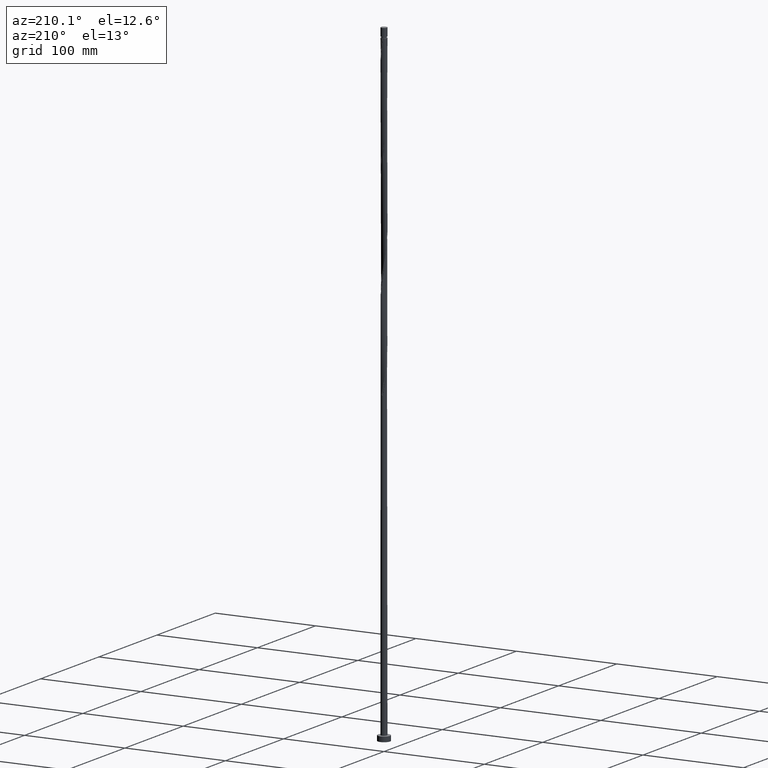
[diagram: clean part render]
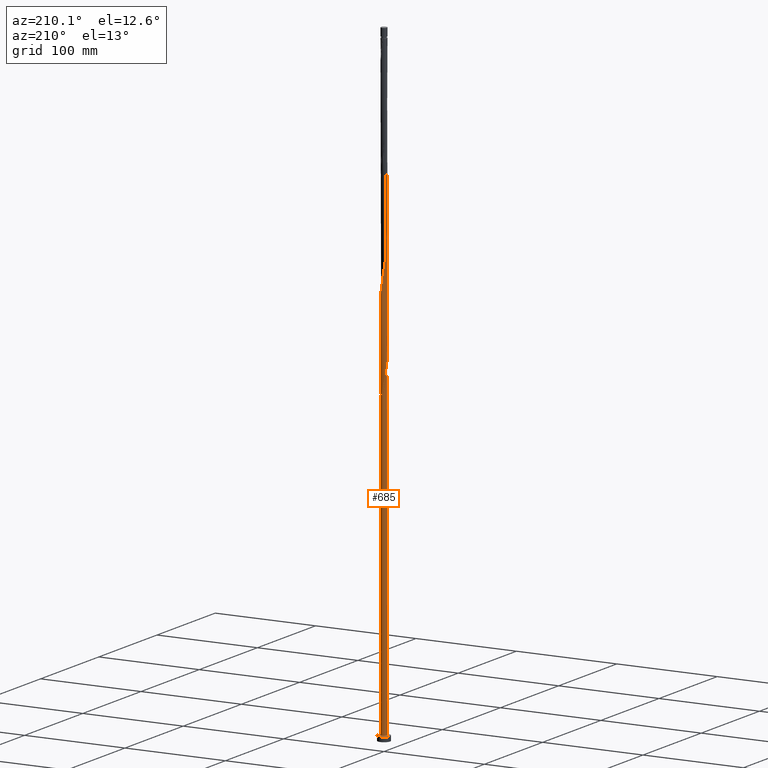
[diagram: same view with one face highlighted and labeled with its STEP entity id]
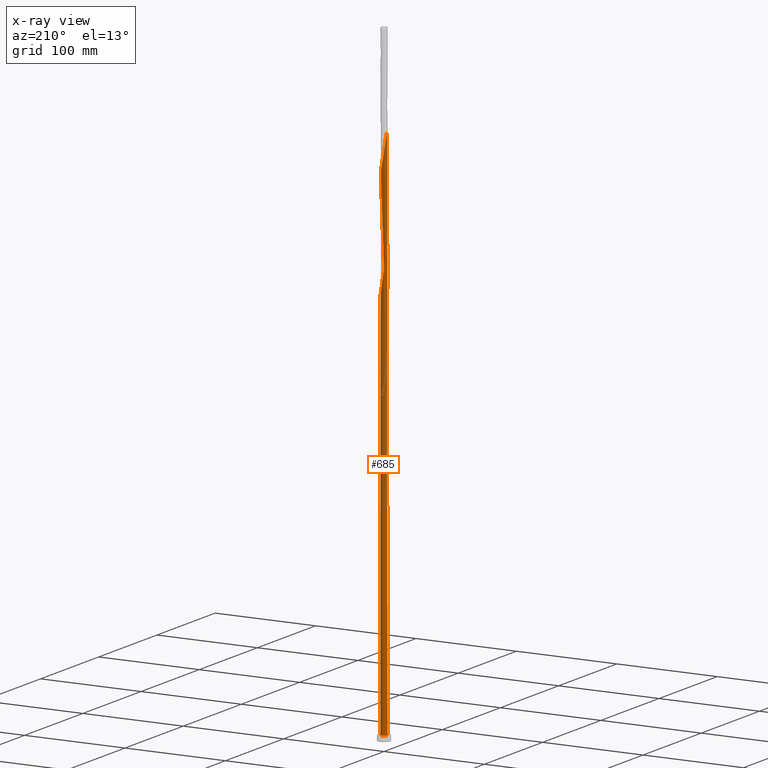
[diagram: x-ray of the same camera — body ghosted, the highlighted face saturated]
A machine part, auxiliary view. The second image highlights one B-rep face of the part: STEP entity #685.
The next image is the same camera in x-ray: the body ghosted, the highlighted face saturated — about 0% of this face is hidden behind the body in this view.
In plain terms, the highlighted cylindrical surface (bore or boss wall) has radius 3 mm, axis along (-0, -0, -1).
Its self-contained STEP definition (entity closure, byte-faithful):
#3 = CARTESIAN_POINT ( 'NONE',  ( 2.536630621716258638, 1.625664187643079517, 495.7326650372680774 ) ) ;
#10 = DIRECTION ( 'NONE',  ( -1.000000000000000000, 0.000000000000000000, 0.000000000000000000 ) ) ;
#17 = CARTESIAN_POINT ( 'NONE',  ( -1.618729390815118574, 2.525809802679398697, 311.9826650372680774 ) ) ;
#32 = CARTESIAN_POINT ( 'NONE',  ( -2.257787423510102087, 1.994912256780598359, 316.6150179784446550 ) ) ;
#48 = AXIS2_PLACEMENT_3D ( 'NONE', #668, #625, #181 ) ;
#51 = CARTESIAN_POINT ( 'NONE',  ( 2.705938983621515970, -1.295335561511913092, 478.7473709196210052 ) ) ;
#60 = CARTESIAN_POINT ( 'NONE',  ( -3.000000000000000444, 0.1620599510377900287, 334.5004839917141908 ) ) ;
#64 = CARTESIAN_POINT ( 'NONE',  ( 2.991142133201746489, -0.2303665318255492811, 484.9238415078563094 ) ) ;
#72 = CARTESIAN_POINT ( 'NONE',  ( 0.04660394873883068334, 2.999637990151803102, 308.8944297431503969 ) ) ;
#73 = CARTESIAN_POINT ( 'NONE',  ( -2.952595250812086292, -0.5995500370242291543, 437.0561944490327733 ) ) ;
#105 = CARTESIAN_POINT ( 'NONE',  ( 2.982541993412459735, 0.3231768208446592627, 383.0120768019739330 ) ) ;
#112 = CARTESIAN_POINT ( 'NONE',  ( -3.000000000000004885, 3.585298424180292749E-16, 538.7079856743387154 ) ) ;
#118 = CARTESIAN_POINT ( 'NONE',  ( 1.040137337541179319, 2.813914412176173219, 401.5414885666797886 ) ) ;
#129 = CARTESIAN_POINT ( 'NONE',  ( -1.040137337541177986, -2.813914412176173663, 349.0414885666797886 ) ) ;
#140 = CARTESIAN_POINT ( 'NONE',  ( -0.5053716063653430624, -2.957126906218219720, 352.1297238607974123 ) ) ;
#151 = CARTESIAN_POINT ( 'NONE',  ( 2.792154675592615654, 1.131879511953521877, 387.6444297431504538 ) ) ;
#163 = CARTESIAN_POINT ( 'NONE',  ( 3.012488736012832735, 0.04680360466508966255, 486.4679591549152065 ) ) ;
#173 = CARTESIAN_POINT ( 'NONE',  ( 0.3245613423124111829, -2.995319498332392971, 461.7620768019738762 ) ) ;
#181 = DIRECTION ( 'NONE',  ( -1.000000000000000000, 0.000000000000000000, 0.000000000000000000 ) ) ;
#186 = DIRECTION ( 'NONE',  ( -0.000000000000000000, -0.000000000000000000, -1.000000000000000000 ) ) ;
#188 = FACE_OUTER_BOUND ( 'NONE', #2037, .T. ) ;
#194 = CARTESIAN_POINT ( 'NONE',  ( 3.000000000000000444, 0.000000000000000000, 5.000000000000000000 ) ) ;
#211 = CARTESIAN_POINT ( 'NONE',  ( -3.000000000000000000, -2.464892666623968010E-15, 335.4044032237268880 ) ) ;
#213 = CARTESIAN_POINT ( 'NONE',  ( 1.127051113500264545, -2.780243835989542056, 466.3944297431503401 ) ) ;
#222 = CARTESIAN_POINT ( 'NONE',  ( -2.365677638043349074, 1.844876503417407720, 324.3356062137385720 ) ) ;
#226 = CARTESIAN_POINT ( 'NONE',  ( 2.585908467384855580, -1.546077734242734536, 477.2032532725622218 ) ) ;
#234 = CARTESIAN_POINT ( 'NONE',  ( 2.792154675592615654, 1.131879511953521877, 492.6444297431503969 ) ) ;
#240 = ORIENTED_EDGE ( 'NONE', *, *, #2021, .F. ) ;
#268 = CARTESIAN_POINT ( 'NONE',  ( -0.2313534448347506212, -3.003956481971224335, 353.6738415078563662 ) ) ;
#276 = CARTESIAN_POINT ( 'NONE',  ( 1.852780136845253445, -2.375812435047330418, 366.0267826843269177 ) ) ;
#281 = CARTESIAN_POINT ( 'NONE',  ( -2.705938983621516858, 1.295335561511912648, 531.2473709196209484 ) ) ;
#284 = CARTESIAN_POINT ( 'NONE',  ( -2.664392648654435369, -1.378771849798300586, 336.6885473902091235 ) ) ;
#294 = CARTESIAN_POINT ( 'NONE',  ( 2.055283780177677766, -2.185362345913963722, 367.5709003313857011 ) ) ;
#303 = CARTESIAN_POINT ( 'NONE',  ( 1.778079971202144449, 2.432223381604499579, 396.9091356255033816 ) ) ;
#306 = VERTEX_POINT ( 'NONE', #701 ) ;
#314 = CARTESIAN_POINT ( 'NONE',  ( 2.897882515124419189, -0.7760650285486373479, 481.8356062137386857 ) ) ;
#316 = ORIENTED_EDGE ( 'NONE', *, *, #956, .T. ) ;
#327 = CARTESIAN_POINT ( 'NONE',  ( -2.792154675592615654, -1.131879511953520989, 440.1444297431504538 ) ) ;
#341 = CARTESIAN_POINT ( 'NONE',  ( -0.04660394873883114825, 2.999637990151807543, 512.7179591549150928 ) ) ;
#355 = AXIS2_PLACEMENT_3D ( 'NONE', #852, #505, #10 ) ;
#360 = EDGE_CURVE ( 'NONE', #1279, #1666, #471, .T. ) ;
#376 = CARTESIAN_POINT ( 'NONE',  ( 1.300884907186420802, 2.717531493887130445, 504.9973709196210621 ) ) ;
#383 = CARTESIAN_POINT ( 'NONE',  ( -1.539482439194282959, -2.574877437745813680, 450.9532532725622218 ) ) ;
#413 = CARTESIAN_POINT ( 'NONE',  ( -2.969795530390661131, 0.5075366683161857129, 535.8797238607975260 ) ) ;
#418 = CARTESIAN_POINT ( 'NONE',  ( 1.618729390815119018, -2.525809802679398697, 364.4826650372681343 ) ) ;
#429 = CARTESIAN_POINT ( 'NONE',  ( -2.982541993412459735, -0.3231768208446587076, 330.5120768019739899 ) ) ;
#437 = CARTESIAN_POINT ( 'NONE',  ( -1.986402312786298197, -2.248156100398118973, 342.8650179784444845 ) ) ;
#447 = CARTESIAN_POINT ( 'NONE',  ( -2.705938983621516858, 1.295335561511912648, 321.2473709196210052 ) ) ;
#450 = CARTESIAN_POINT ( 'NONE',  ( 2.365677638043353515, 1.844876503417411051, 392.2767826843268608 ) ) ;
#460 = CARTESIAN_POINT ( 'NONE',  ( 0.7793897678959356146, 2.910297330465215992, 403.0856062137386289 ) ) ;
#471 =( BOUNDED_CURVE ( )  B_SPLINE_CURVE ( 2, ( #211, #60, #1956, #536, #1799, #1005, #1022, #1647, #222, #713, #1340, #1670, #1801, #1967, #1342, #704, #884, #1649, #72, #1361, #725 ),
 .UNSPECIFIED., .F., .T. ) 
 B_SPLINE_CURVE_WITH_KNOTS ( ( 3, 2, 2, 2, 2, 2, 2, 2, 2, 2, 3 ),
 ( 0.9295293573162902723, 0.9338235294117647189, 0.9411764705882352811, 0.9485294117647058432, 0.9558823529411765163, 0.9632352941176470784, 0.9705882352941176405, 0.9779411764705882026, 0.9852941176470588758, 0.9926470588235294379, 1.000000000000000000 ),
 .UNSPECIFIED. ) 
 CURVE ( )  GEOMETRIC_REPRESENTATION_ITEM ( )  RATIONAL_B_SPLINE_CURVE ( ( 0.9072066346053563324, 0.9068261157891231994, 0.9090909090909947698, 0.9052128875410255793, 0.9090909090909947698, 0.9052128875410255793, 0.9090909090909947698, 0.9052128875410255793, 0.9090909090909947698, 0.9052128875410255793, 0.9090909090909947698, 0.9052128875410255793, 0.9090909090909947698, 0.9052128875410255793, 0.9090909090909947698, 0.9052128875410255793, 0.9090909090909947698, 0.9052128875410255793, 0.9090909090909947698, 0.9052128875410255793, 0.9090909090909947698 ) ) 
 REPRESENTATION_ITEM ( '' )  );
#474 = CARTESIAN_POINT ( 'NONE',  ( -2.969795530390661131, 0.5075366683161857129, 430.8797238607974691 ) ) ;
#487 = CARTESIAN_POINT ( 'NONE',  ( -2.421847945447479056, 1.770494995511666669, 423.1591356255033247 ) ) ;
#499 = CARTESIAN_POINT ( 'NONE',  ( -0.3245613423124109054, 2.995319498332392971, 514.2620768019738762 ) ) ;
#505 = DIRECTION ( 'NONE',  ( -0.000000000000000000, -0.000000000000000000, -1.000000000000000000 ) ) ;
#511 = CARTESIAN_POINT ( 'NONE',  ( -3.000000000000000444, 0.000000000000000000, 630.0000000000000000 ) ) ;
#536 = CARTESIAN_POINT ( 'NONE',  ( -2.952595250812082739, 0.5995500370242290433, 332.0561944490327164 ) ) ;
#538 = CARTESIAN_POINT ( 'NONE',  ( 1.986402312786298197, 2.248156100398118529, 500.3650179784444845 ) ) ;
#546 = CARTESIAN_POINT ( 'NONE',  ( -2.194724654370450168, -2.064088819191741031, 446.3209003313856442 ) ) ;
#552 = ORIENTED_EDGE ( 'NONE', *, *, #1448, .F. ) ;
#565 = CARTESIAN_POINT ( 'NONE',  ( -2.421847945447479056, 1.770494995511666669, 528.1591356255032679 ) ) ;
#592 = CARTESIAN_POINT ( 'NONE',  ( -2.055283780177677766, 2.185362345913964166, 420.0709003313857011 ) ) ;
#601 = CARTESIAN_POINT ( 'NONE',  ( -2.421847945447479056, 1.770494995511666669, 318.1591356255033816 ) ) ;
#603 = CARTESIAN_POINT ( 'NONE',  ( 0.5053716063653433954, 2.957126906218219720, 404.6297238607974691 ) ) ;
#613 = CARTESIAN_POINT ( 'NONE',  ( -3.000000000000005329, 0.1153535636630458883, 328.0645799222789947 ) ) ;
#616 = CARTESIAN_POINT ( 'NONE',  ( -2.194724654370450168, -2.064088819191741031, 341.3209003313857011 ) ) ;
#625 = DIRECTION ( 'NONE',  ( 0.000000000000000000, -0.000000000000000000, -1.000000000000000000 ) ) ;
#628 = CARTESIAN_POINT ( 'NONE',  ( 2.194724654370450168, 2.064088819191740587, 393.8209003313857011 ) ) ;
#638 = CARTESIAN_POINT ( 'NONE',  ( -0.7793897678959365027, -2.910297330465215548, 350.5856062137387994 ) ) ;
#649 = CARTESIAN_POINT ( 'NONE',  ( 2.421847945447479056, -1.770494995511666669, 475.6591356255032679 ) ) ;
#660 = CARTESIAN_POINT ( 'NONE',  ( 1.040137337541179319, 2.813914412176173219, 506.5414885666797886 ) ) ;
#668 = CARTESIAN_POINT ( 'NONE',  ( 0.000000000000000000, 0.000000000000000000, 305.8061944490327733 ) ) ;
#674 = CARTESIAN_POINT ( 'NONE',  ( -3.000000000000000444, 0.000000000000000000, 630.0000000000000000 ) ) ;
#676 = CARTESIAN_POINT ( 'NONE',  ( -0.5969924622639778411, 2.940000000000004388, 305.8061944490327164 ) ) ;
#685 = ADVANCED_FACE ( 'NONE', ( #188 ), #1284, .T. ) ;
#696 = VECTOR ( 'NONE', #186, 1000.000000000000000 ) ;
#701 = CARTESIAN_POINT ( 'NONE',  ( -3.000000000000000444, 0.000000000000000000, 5.000000000000000000 ) ) ;
#704 = CARTESIAN_POINT ( 'NONE',  ( -0.7793897678959346154, 2.910297330465211996, 313.5267826843268608 ) ) ;
#705 = CARTESIAN_POINT ( 'NONE',  ( -0.2313534448347506212, -3.003956481971224335, 458.6738415078563662 ) ) ;
#713 = CARTESIAN_POINT ( 'NONE',  ( -2.194724654370445727, 2.064088819191737478, 322.7914885666799023 ) ) ;
#716 = CARTESIAN_POINT ( 'NONE',  ( -1.040137337541177986, -2.813914412176173663, 454.0414885666797886 ) ) ;
#725 = CARTESIAN_POINT ( 'NONE',  ( 0.5969924622639788403, 2.939999999999999059, 305.8061944490327164 ) ) ;
#732 = VERTEX_POINT ( 'NONE', #676 ) ;
#737 = CARTESIAN_POINT ( 'NONE',  ( -2.991142133201746489, 0.2303665318255482819, 537.4238415078565367 ) ) ;
#759 = CARTESIAN_POINT ( 'NONE',  ( 2.536630621716258638, 1.625664187643079517, 390.7326650372681343 ) ) ;
#768 = CARTESIAN_POINT ( 'NONE',  ( 1.384678644784983703, -2.675807170311466976, 362.9385473902092372 ) ) ;
#778 = CARTESIAN_POINT ( 'NONE',  ( 3.012488736012832735, 0.04680360466508966255, 381.4679591549152065 ) ) ;
#787 = CARTESIAN_POINT ( 'NONE',  ( 1.300884907186420802, 2.717531493887130445, 399.9973709196210621 ) ) ;
#799 = CARTESIAN_POINT ( 'NONE',  ( -1.618729390815118574, 2.525809802679398697, 416.9826650372681343 ) ) ;
#811 = CARTESIAN_POINT ( 'NONE',  ( 1.778079971202144449, 2.432223381604499579, 501.9091356255034384 ) ) ;
#824 = CARTESIAN_POINT ( 'NONE',  ( -2.897882515124418745, 0.7760650285486383471, 429.3356062137386857 ) ) ;
#833 = AXIS2_PLACEMENT_3D ( 'NONE', #1169, #1306, #836 ) ;
#836 = DIRECTION ( 'NONE',  ( 1.000000000000000000, 0.000000000000000000, 0.000000000000000000 ) ) ;
#852 = CARTESIAN_POINT ( 'NONE',  ( 0.000000000000000000, 0.000000000000000000, 630.0000000000000000 ) ) ;
#862 = CARTESIAN_POINT ( 'NONE',  ( -2.365677638043353515, -1.844876503417409941, 444.7767826843268040 ) ) ;
#868 = CIRCLE ( 'NONE', #1322, 3.000000000000000444 ) ;
#875 = CARTESIAN_POINT ( 'NONE',  ( 2.952595250812086292, 0.5995500370242289323, 489.5561944490328870 ) ) ;
#884 = CARTESIAN_POINT ( 'NONE',  ( -0.5053716063653417301, 2.957126906218214835, 311.9826650372680774 ) ) ;
#885 = CARTESIAN_POINT ( 'NONE',  ( 0.8694235822155469418, -2.884680501667616248, 464.8503120960916704 ) ) ;
#894 = CARTESIAN_POINT ( 'NONE',  ( -2.585908467384855580, 1.546077734242734980, 529.7032532725622787 ) ) ;
#916 = CARTESIAN_POINT ( 'NONE',  ( 2.872374963202350973, 0.8657147744888740171, 386.1003120960915567 ) ) ;
#924 = CARTESIAN_POINT ( 'NONE',  ( 2.825969499858178136, -1.044593388781091869, 375.2914885666799023 ) ) ;
#930 = VECTOR ( 'NONE', #1440, 1000.000000000000000 ) ;
#936 = CARTESIAN_POINT ( 'NONE',  ( 2.897882515124419189, -0.7760650285486373479, 376.8356062137387426 ) ) ;
#956 = EDGE_CURVE ( 'NONE', #2056, #306, #868, .T. ) ;
#957 = CARTESIAN_POINT ( 'NONE',  ( -0.3245613423124109054, 2.995319498332392971, 409.2620768019739330 ) ) ;
#963 = CIRCLE ( 'NONE', #48, 3.000000000000000444 ) ;
#967 = CARTESIAN_POINT ( 'NONE',  ( 1.852780136845253445, -2.375812435047330418, 471.0267826843269177 ) ) ;
#977 = CARTESIAN_POINT ( 'NONE',  ( -0.7793897678959365027, -2.910297330465215548, 455.5856062137387426 ) ) ;
#987 = CARTESIAN_POINT ( 'NONE',  ( 1.618729390815119018, -2.525809802679398697, 469.4826650372680206 ) ) ;
#998 = ORIENTED_EDGE ( 'NONE', *, *, #1201, .T. ) ;
#1005 = CARTESIAN_POINT ( 'NONE',  ( -2.792154675592610769, 1.131879511953520323, 328.9679591549152065 ) ) ;
#1019 = DIRECTION ( 'NONE',  ( 0.000000000000000000, 0.000000000000000000, 1.000000000000000000 ) ) ;
#1022 = CARTESIAN_POINT ( 'NONE',  ( -2.664392648654431817, 1.378771849798299032, 327.4238415078563094 ) ) ;
#1024 = CARTESIAN_POINT ( 'NONE',  ( -1.778079971202145115, -2.432223381604499135, 449.4091356255033816 ) ) ;
#1034 = CARTESIAN_POINT ( 'NONE',  ( 2.825969499858178136, -1.044593388781091869, 480.2914885666797318 ) ) ;
#1043 = CARTESIAN_POINT ( 'NONE',  ( -3.000000000000003997, 0.1153535636630599881, 538.0645799222789947 ) ) ;
#1069 = CARTESIAN_POINT ( 'NONE',  ( -3.000000000000004885, -0.1620599510377954411, 329.6119049063514694 ) ) ;
#1080 = CARTESIAN_POINT ( 'NONE',  ( 2.257787423510101643, -1.994912256780598581, 369.1150179784445413 ) ) ;
#1085 = CARTESIAN_POINT ( 'NONE',  ( -2.257787423510102087, 1.994912256780598359, 526.6150179784447118 ) ) ;
#1089 = CARTESIAN_POINT ( 'NONE',  ( 1.127051113500264545, -2.780243835989542056, 361.3944297431503401 ) ) ;
#1098 = CARTESIAN_POINT ( 'NONE',  ( -1.384678644784983703, 2.675807170311466976, 415.4385473902093509 ) ) ;
#1106 =( BOUNDED_CURVE ( )  B_SPLINE_CURVE ( 2, ( #1405, #1069, #429, #1704, #1864, #1884, #284, #1107, #1393, #616, #437, #1695, #1846, #2045, #129, #638, #140, #268, #1713, #1723, #1419, #1563, #1089, #768, #418, #276, #294, #1080, #2025, #1542, #1574, #924, #936, #1238, #1553, #778, #105, #1261, #916, #151, #2035, #759, #450, #628, #1731, #303, #1384, #787, #118, #460, #603, #1231, #1249, #957, #1583, #1872, #2015, #1098, #799, #1430, #592, #2054, #487, #1895, #1612, #1493, #824, #474, #1118, #1968, #1752, #73, #1132, #327, #1741, #1909, #862, #546, #1442, #1024, #383, #1593, #716, #977, #1601, #705, #1343, #173, #1181, #885, #213, #1813, #987, #967, #1454, #1501, #649, #226, #51, #1034, #314, #1802, #64, #163, #1333, #875, #1661, #234, #1293, #3, #1959, #1280, #538, #811, #1510, #376, #660, #2063, #1271, #1921, #341, #499, #1141, #1763, #1173, #1650, #1193, #1689, #1990, #1085, #565, #894, #281, #1978, #1528, #413, #737, #1043, #112 ),
 .UNSPECIFIED., .F., .T. ) 
 B_SPLINE_CURVE_WITH_KNOTS ( ( 3, 2, 2, 2, 2, 2, 2, 2, 2, 2, 2, 2, 2, 2, 2, 2, 2, 2, 2, 2, 2, 2, 2, 2, 2, 2, 2, 2, 2, 2, 2, 2, 2, 2, 2, 2, 2, 2, 2, 2, 2, 2, 2, 2, 2, 2, 2, 2, 2, 2, 2, 2, 2, 2, 2, 2, 2, 2, 2, 2, 2, 2, 2, 2, 2, 2, 2, 2, 2, 3 ),
 ( 0.05452935731629042493, 0.05882352941176471894, 0.06617647058823528106, 0.07352941176470584317, 0.08088235294117651630, 0.08823529411764707842, 0.09558823529411764053, 0.1029411764705882026, 0.1102941176470588758, 0.1176470588235294379, 0.1250000000000000000, 0.1323529411764705621, 0.1397058823529411242, 0.1470588235294117974, 0.1544117647058823595, 0.1617647058823529216, 0.1691176470588234837, 0.1764705882352941568, 0.1838235294117647189, 0.1911764705882352811, 0.1985294117647058432, 0.2058823529411765163, 0.2132352941176470784, 0.2205882352941176405, 0.2279411764705882026, 0.2352941176470588758, 0.2426470588235294379, 0.2500000000000000000, 0.2573529411764705621, 0.2647058823529411242, 0.2720588235294117974, 0.2794117647058823595, 0.2867647058823529216, 0.2941176470588234837, 0.3014705882352941568, 0.3088235294117647189, 0.3161764705882352811, 0.3235294117647058432, 0.3308823529411765163, 0.3382352941176470784, 0.3455882352941176405, 0.3529411764705882026, 0.3602941176470588758, 0.3676470588235294379, 0.3750000000000000000, 0.3823529411764705621, 0.3897058823529411242, 0.3970588235294117974, 0.4044117647058823595, 0.4117647058823529216, 0.4191176470588234837, 0.4264705882352941568, 0.4338235294117647189, 0.4411764705882352811, 0.4485294117647058432, 0.4558823529411765163, 0.4632352941176470784, 0.4705882352941176405, 0.4779411764705882026, 0.4852941176470588758, 0.4926470588235294379, 0.5000000000000000000, 0.5073529411764705621, 0.5147058823529411242, 0.5220588235294116863, 0.5294117647058823595, 0.5367647058823529216, 0.5441176470588235947, 0.5514705882352941568, 0.5545293573162900502 ),
 .UNSPECIFIED. ) 
 CURVE ( )  GEOMETRIC_REPRESENTATION_ITEM ( )  RATIONAL_B_SPLINE_CURVE ( ( 0.9072066346053625496, 0.9068261157891295277, 0.9090909090910008761, 0.9052128875410317965, 0.9090909090910008761, 0.9052128875410317965, 0.9090909090910008761, 0.9052128875410317965, 0.9090909090910008761, 0.9052128875410317965, 0.9090909090910008761, 0.9052128875410317965, 0.9090909090910008761, 0.9052128875410317965, 0.9090909090910008761, 0.9052128875410317965, 0.9090909090910008761, 0.9052128875410317965, 0.9090909090910008761, 0.9052128875410317965, 0.9090909090910008761, 0.9052128875410317965, 0.9090909090910008761, 0.9052128875410317965, 0.9090909090910008761, 0.9052128875410317965, 0.9090909090910008761, 0.9052128875410317965, 0.9090909090910008761, 0.9052128875410317965, 0.9090909090910008761, 0.9052128875410317965, 0.9090909090910008761, 0.9052128875410317965, 0.9090909090910008761, 0.9052128875410317965, 0.9090909090910008761, 0.9052128875410317965, 0.9090909090910008761, 0.9052128875410317965, 0.9090909090910008761, 0.9052128875410317965, 0.9090909090910008761, 0.9052128875410317965, 0.9090909090910008761, 0.9052128875410317965, 0.9090909090910008761, 0.9052128875410317965, 0.9090909090910008761, 0.9052128875410317965, 0.9090909090910008761, 0.9052128875410317965, 0.9090909090910008761, 0.9052128875410317965, 0.9090909090910008761, 0.9052128875410317965, 0.9090909090910008761, 0.9052128875410317965, 0.9090909090910008761, 0.9052128875410317965, 0.9090909090910008761, 0.9052128875410317965, 0.9090909090910008761, 0.9052128875410317965, 0.9090909090910008761, 0.9052128875410317965, 0.9090909090910008761, 0.9052128875410317965, 0.9090909090910008761, 0.9052128875410317965, 0.9090909090910008761, 0.9052128875410317965, 0.9090909090910008761, 0.9052128875410317965, 0.9090909090910008761, 0.9052128875410317965, 0.9090909090910008761, 0.9052128875410317965, 0.9090909090910008761, 0.9052128875410317965, 0.9090909090910008761, 0.9052128875410317965, 0.9090909090910008761, 0.9052128875410317965, 0.9090909090910008761, 0.9052128875410317965, 0.9090909090910008761, 0.9052128875410317965, 0.9090909090910008761, 0.9052128875410317965, 0.9090909090910008761, 0.9052128875410317965, 0.9090909090910008761, 0.9052128875410317965, 0.9090909090910008761, 0.9052128875410317965, 0.9090909090910008761, 0.9052128875410317965, 0.9090909090910008761, 0.9052128875410317965, 0.9090909090910008761, 0.9052128875410317965, 0.9090909090910008761, 0.9052128875410317965, 0.9090909090910008761, 0.9052128875410317965, 0.9090909090910008761, 0.9052128875410317965, 0.9090909090910008761, 0.9052128875410317965, 0.9090909090910008761, 0.9052128875410317965, 0.9090909090910008761, 0.9052128875410317965, 0.9090909090910008761, 0.9052128875410317965, 0.9090909090910008761, 0.9052128875410317965, 0.9090909090910008761, 0.9052128875410317965, 0.9090909090910008761, 0.9052128875410317965, 0.9090909090910008761, 0.9052128875410317965, 0.9090909090910008761, 0.9052128875410317965, 0.9090909090910008761, 0.9052128875410317965, 0.9090909090910008761, 0.9052128875410317965, 0.9090909090910008761, 0.9052128875410317965, 0.9090909090910008761, 0.9052128875410317965, 0.9090909090910008761, 0.9052128875410317965, 0.9090909090910008761, 0.9074776808429033670, 0.9072066346053624386 ) ) 
 REPRESENTATION_ITEM ( '' )  );
#1107 = CARTESIAN_POINT ( 'NONE',  ( -2.536630621716258638, -1.625664187643080183, 338.2326650372679637 ) ) ;
#1118 = CARTESIAN_POINT ( 'NONE',  ( -2.991142133201746489, 0.2303665318255482819, 432.4238415078563094 ) ) ;
#1132 = CARTESIAN_POINT ( 'NONE',  ( -2.872374963202350973, -0.8657147744888750163, 438.6003120960915567 ) ) ;
#1139 = CARTESIAN_POINT ( 'NONE',  ( -0.5969924622639778411, 2.940000000000004388, 305.8061944490326596 ) ) ;
#1141 = CARTESIAN_POINT ( 'NONE',  ( -0.5969924622639777301, 2.940000000000003499, 515.8061944490327733 ) ) ;
#1144 = EDGE_CURVE ( 'NONE', #1784, #1279, #1615, .T. ) ;
#1169 = CARTESIAN_POINT ( 'NONE',  ( 0.000000000000000000, 0.000000000000000000, 5.000000000000000000 ) ) ;
#1173 = CARTESIAN_POINT ( 'NONE',  ( -1.127051113500265211, 2.780243835989542056, 518.8944297431503401 ) ) ;
#1181 = CARTESIAN_POINT ( 'NONE',  ( 0.5969924622639781742, -2.940000000000003499, 463.3061944490327733 ) ) ;
#1193 = CARTESIAN_POINT ( 'NONE',  ( -1.618729390815118574, 2.525809802679398697, 521.9826650372681343 ) ) ;
#1201 = EDGE_CURVE ( 'NONE', #732, #1666, #963, .T. ) ;
#1231 = CARTESIAN_POINT ( 'NONE',  ( 0.2313534448347508987, 3.003956481971224335, 406.1738415078564230 ) ) ;
#1238 = CARTESIAN_POINT ( 'NONE',  ( 2.969795530390661131, -0.5075366683161854908, 378.3797238607972986 ) ) ;
#1248 = CARTESIAN_POINT ( 'NONE',  ( -3.000000000000004885, 2.793545022173811847E-15, 328.7079856743386586 ) ) ;
#1249 = CARTESIAN_POINT ( 'NONE',  ( -0.04660394873883114825, 2.999637990151807543, 407.7179591549150928 ) ) ;
#1261 = CARTESIAN_POINT ( 'NONE',  ( 2.952595250812086292, 0.5995500370242289323, 384.5561944490328870 ) ) ;
#1264 =( BOUNDED_CURVE ( )  B_SPLINE_CURVE ( 2, ( #1139, #1300, #1712, #1403, #17, #1771, #1474, #32, #601, #1930, #447, #1862, #1759, #2044, #2034, #613, #1248 ),
 .UNSPECIFIED., .F., .T. ) 
 B_SPLINE_CURVE_WITH_KNOTS ( ( 3, 2, 2, 2, 2, 2, 2, 2, 3 ),
 ( 0.000000000000000000, 0.007352941176470562112, 0.01470588235294112422, 0.02205882352941179736, 0.02941176470588235947, 0.03676470588235292158, 0.04411764705882348370, 0.05147058823529415683, 0.05452935731629042493 ),
 .UNSPECIFIED. ) 
 CURVE ( )  GEOMETRIC_REPRESENTATION_ITEM ( )  RATIONAL_B_SPLINE_CURVE ( ( 0.9090909090910008761, 0.9052128875410317965, 0.9090909090910008761, 0.9052128875410317965, 0.9090909090910008761, 0.9052128875410317965, 0.9090909090910008761, 0.9052128875410317965, 0.9090909090910008761, 0.9052128875410317965, 0.9090909090910008761, 0.9052128875410317965, 0.9090909090910008761, 0.9052128875410317965, 0.9090909090910008761, 0.9074776808429032560, 0.9072066346053625496 ) ) 
 REPRESENTATION_ITEM ( '' )  );
#1271 = CARTESIAN_POINT ( 'NONE',  ( 0.5053716063653433954, 2.957126906218219720, 509.6297238607974123 ) ) ;
#1279 = VERTEX_POINT ( 'NONE', #1622 ) ;
#1280 = CARTESIAN_POINT ( 'NONE',  ( 2.194724654370450168, 2.064088819191740587, 498.8209003313857579 ) ) ;
#1284 = CYLINDRICAL_SURFACE ( 'NONE', #355, 3.000000000000000444 ) ;
#1291 = EDGE_CURVE ( 'NONE', #732, #1582, #1264, .T. ) ;
#1293 = CARTESIAN_POINT ( 'NONE',  ( 2.664392648654435369, 1.378771849798300142, 494.1885473902092372 ) ) ;
#1300 = CARTESIAN_POINT ( 'NONE',  ( -0.8694235822155466087, 2.884680501667616248, 307.3503120960916704 ) ) ;
#1305 = ORIENTED_EDGE ( 'NONE', *, *, #2021, .T. ) ;
#1306 = DIRECTION ( 'NONE',  ( 0.000000000000000000, 0.000000000000000000, 1.000000000000000000 ) ) ;
#1322 = AXIS2_PLACEMENT_3D ( 'NONE', #1327, #1019, #1766 ) ;
#1327 = CARTESIAN_POINT ( 'NONE',  ( 0.000000000000000000, 0.000000000000000000, 5.000000000000000000 ) ) ;
#1333 = CARTESIAN_POINT ( 'NONE',  ( 2.982541993412459735, 0.3231768208446592627, 488.0120768019738193 ) ) ;
#1340 = CARTESIAN_POINT ( 'NONE',  ( -1.986402312786293534, 2.248156100398116308, 321.2473709196210052 ) ) ;
#1342 = CARTESIAN_POINT ( 'NONE',  ( -1.040137337541176432, 2.813914412176169222, 315.0709003313857579 ) ) ;
#1343 = CARTESIAN_POINT ( 'NONE',  ( 0.04660394873883029476, -2.999637990151807543, 460.2179591549151496 ) ) ;
#1361 = CARTESIAN_POINT ( 'NONE',  ( 0.3245613423124107388, 2.995319498332386754, 307.3503120960916704 ) ) ;
#1366 = CARTESIAN_POINT ( 'NONE',  ( -3.000000000000004885, 3.585298424180292749E-16, 538.7079856743387154 ) ) ;
#1384 = CARTESIAN_POINT ( 'NONE',  ( 1.539482439194282515, 2.574877437745814568, 398.4532532725622218 ) ) ;
#1393 = CARTESIAN_POINT ( 'NONE',  ( -2.365677638043353515, -1.844876503417409941, 339.7767826843267471 ) ) ;
#1403 = CARTESIAN_POINT ( 'NONE',  ( -1.384678644784983703, 2.675807170311466976, 310.4385473902091803 ) ) ;
#1405 = CARTESIAN_POINT ( 'NONE',  ( -3.000000000000004885, 2.793545022173811847E-15, 328.7079856743386586 ) ) ;
#1419 = CARTESIAN_POINT ( 'NONE',  ( 0.5969924622639781742, -2.940000000000003499, 358.3061944490328301 ) ) ;
#1430 = CARTESIAN_POINT ( 'NONE',  ( -1.852780136845253889, 2.375812435047330418, 418.5267826843269177 ) ) ;
#1440 = DIRECTION ( 'NONE',  ( -0.000000000000000000, -0.000000000000000000, -1.000000000000000000 ) ) ;
#1442 = CARTESIAN_POINT ( 'NONE',  ( -1.986402312786298197, -2.248156100398118973, 447.8650179784446550 ) ) ;
#1448 = EDGE_CURVE ( 'NONE', #1582, #1784, #1106, .T. ) ;
#1454 = CARTESIAN_POINT ( 'NONE',  ( 2.055283780177677766, -2.185362345913963722, 472.5709003313858148 ) ) ;
#1474 = CARTESIAN_POINT ( 'NONE',  ( -2.055283780177677766, 2.185362345913964166, 315.0709003313857579 ) ) ;
#1493 = CARTESIAN_POINT ( 'NONE',  ( -2.825969499858178136, 1.044593388781091425, 427.7914885666798455 ) ) ;
#1501 = CARTESIAN_POINT ( 'NONE',  ( 2.257787423510101643, -1.994912256780598581, 474.1150179784445413 ) ) ;
#1510 = CARTESIAN_POINT ( 'NONE',  ( 1.539482439194282515, 2.574877437745814568, 503.4532532725622787 ) ) ;
#1522 = CARTESIAN_POINT ( 'NONE',  ( 0.5969924622639788403, 2.939999999999999059, 305.8061944490327164 ) ) ;
#1528 = CARTESIAN_POINT ( 'NONE',  ( -2.897882515124418745, 0.7760650285486383471, 534.3356062137386289 ) ) ;
#1542 = CARTESIAN_POINT ( 'NONE',  ( 2.585908467384855580, -1.546077734242734536, 372.2032532725621081 ) ) ;
#1553 = CARTESIAN_POINT ( 'NONE',  ( 2.991142133201746489, -0.2303665318255492811, 379.9238415078563094 ) ) ;
#1563 = CARTESIAN_POINT ( 'NONE',  ( 0.8694235822155469418, -2.884680501667616248, 359.8503120960915567 ) ) ;
#1574 = CARTESIAN_POINT ( 'NONE',  ( 2.705938983621515970, -1.295335561511913092, 373.7473709196209484 ) ) ;
#1576 = ORIENTED_EDGE ( 'NONE', *, *, #1291, .F. ) ;
#1582 = VERTEX_POINT ( 'NONE', #1796 ) ;
#1583 = CARTESIAN_POINT ( 'NONE',  ( -0.5969924622639777301, 2.940000000000003499, 410.8061944490329438 ) ) ;
#1593 = CARTESIAN_POINT ( 'NONE',  ( -1.300884907186420802, -2.717531493887130445, 452.4973709196211189 ) ) ;
#1596 = EDGE_CURVE ( 'NONE', #306, #2056, #1977, .T. ) ;
#1601 = CARTESIAN_POINT ( 'NONE',  ( -0.5053716063653430624, -2.957126906218219720, 457.1297238607974123 ) ) ;
#1612 = CARTESIAN_POINT ( 'NONE',  ( -2.705938983621516858, 1.295335561511912648, 426.2473709196209484 ) ) ;
#1615 = LINE ( 'NONE', #674, #696 ) ;
#1622 = CARTESIAN_POINT ( 'NONE',  ( -3.000000000000000000, -2.464892666623968010E-15, 335.4044032237268880 ) ) ;
#1647 = CARTESIAN_POINT ( 'NONE',  ( -2.536630621716254197, 1.625664187643078851, 325.8797238607975260 ) ) ;
#1649 = CARTESIAN_POINT ( 'NONE',  ( -0.2313534448347491501, 3.003956481971221226, 310.4385473902091803 ) ) ;
#1650 = CARTESIAN_POINT ( 'NONE',  ( -1.384678644784983703, 2.675807170311466976, 520.4385473902092372 ) ) ;
#1661 = CARTESIAN_POINT ( 'NONE',  ( 2.872374963202350973, 0.8657147744888740171, 491.1003120960916704 ) ) ;
#1666 = VERTEX_POINT ( 'NONE', #1522 ) ;
#1670 = CARTESIAN_POINT ( 'NONE',  ( -1.778079971202141785, 2.432223381604495582, 319.7032532725621650 ) ) ;
#1689 = CARTESIAN_POINT ( 'NONE',  ( -1.852780136845253889, 2.375812435047330418, 523.5267826843268040 ) ) ;
#1695 = CARTESIAN_POINT ( 'NONE',  ( -1.778079971202145115, -2.432223381604499135, 344.4091356255032679 ) ) ;
#1704 = CARTESIAN_POINT ( 'NONE',  ( -2.952595250812086292, -0.5995500370242291543, 332.0561944490327164 ) ) ;
#1712 = CARTESIAN_POINT ( 'NONE',  ( -1.127051113500265211, 2.780243835989542056, 308.8944297431503969 ) ) ;
#1713 = CARTESIAN_POINT ( 'NONE',  ( 0.04660394873883029476, -2.999637990151807543, 355.2179591549151496 ) ) ;
#1723 = CARTESIAN_POINT ( 'NONE',  ( 0.3245613423124111829, -2.995319498332392971, 356.7620768019740467 ) ) ;
#1731 = CARTESIAN_POINT ( 'NONE',  ( 1.986402312786298197, 2.248156100398118529, 395.3650179784444845 ) ) ;
#1740 = ORIENTED_EDGE ( 'NONE', *, *, #360, .F. ) ;
#1741 = CARTESIAN_POINT ( 'NONE',  ( -2.664392648654435369, -1.378771849798300586, 441.6885473902092940 ) ) ;
#1752 = CARTESIAN_POINT ( 'NONE',  ( -2.982541993412459735, -0.3231768208446587076, 435.5120768019738762 ) ) ;
#1759 = CARTESIAN_POINT ( 'NONE',  ( -2.897882515124418745, 0.7760650285486383471, 324.3356062137386857 ) ) ;
#1763 = CARTESIAN_POINT ( 'NONE',  ( -0.8694235822155466087, 2.884680501667616248, 517.3503120960916704 ) ) ;
#1766 = DIRECTION ( 'NONE',  ( 1.000000000000000000, 0.000000000000000000, 0.000000000000000000 ) ) ;
#1771 = CARTESIAN_POINT ( 'NONE',  ( -1.852780136845253889, 2.375812435047330418, 313.5267826843269177 ) ) ;
#1784 = VERTEX_POINT ( 'NONE', #1366 ) ;
#1796 = CARTESIAN_POINT ( 'NONE',  ( -3.000000000000004885, 2.793545022173811847E-15, 328.7079856743387154 ) ) ;
#1799 = CARTESIAN_POINT ( 'NONE',  ( -2.872374963202346088, 0.8657147744888745722, 330.5120768019739330 ) ) ;
#1801 = CARTESIAN_POINT ( 'NONE',  ( -1.539482439194279628, 2.574877437745810571, 318.1591356255033816 ) ) ;
#1802 = CARTESIAN_POINT ( 'NONE',  ( 2.969795530390661131, -0.5075366683161854908, 483.3797238607974691 ) ) ;
#1813 = CARTESIAN_POINT ( 'NONE',  ( 1.384678644784983703, -2.675807170311466976, 467.9385473902091803 ) ) ;
#1846 = CARTESIAN_POINT ( 'NONE',  ( -1.539482439194282959, -2.574877437745813680, 345.9532532725622218 ) ) ;
#1862 = CARTESIAN_POINT ( 'NONE',  ( -2.825969499858178136, 1.044593388781091425, 322.7914885666799023 ) ) ;
#1864 = CARTESIAN_POINT ( 'NONE',  ( -2.872374963202350973, -0.8657147744888750163, 333.6003120960916704 ) ) ;
#1872 = CARTESIAN_POINT ( 'NONE',  ( -0.8694235822155466087, 2.884680501667616248, 412.3503120960914430 ) ) ;
#1884 = CARTESIAN_POINT ( 'NONE',  ( -2.792154675592615654, -1.131879511953520989, 335.1444297431504538 ) ) ;
#1895 = CARTESIAN_POINT ( 'NONE',  ( -2.585908467384855580, 1.546077734242734980, 424.7032532725622787 ) ) ;
#1909 = CARTESIAN_POINT ( 'NONE',  ( -2.536630621716258638, -1.625664187643080183, 443.2326650372680206 ) ) ;
#1921 = CARTESIAN_POINT ( 'NONE',  ( 0.2313534448347508987, 3.003956481971224335, 511.1738415078562525 ) ) ;
#1930 = CARTESIAN_POINT ( 'NONE',  ( -2.585908467384855580, 1.546077734242734980, 319.7032532725622787 ) ) ;
#1932 = LINE ( 'NONE', #511, #930 ) ;
#1956 = CARTESIAN_POINT ( 'NONE',  ( -2.982541993412455739, 0.3231768208446592627, 333.6003120960916704 ) ) ;
#1959 = CARTESIAN_POINT ( 'NONE',  ( 2.365677638043353515, 1.844876503417411051, 497.2767826843268040 ) ) ;
#1967 = CARTESIAN_POINT ( 'NONE',  ( -1.300884907186418582, 2.717531493887126892, 316.6150179784445413 ) ) ;
#1968 = CARTESIAN_POINT ( 'NONE',  ( -3.012488736012832735, -0.04680360466508859396, 433.9679591549150928 ) ) ;
#1977 = CIRCLE ( 'NONE', #833, 3.000000000000000444 ) ;
#1978 = CARTESIAN_POINT ( 'NONE',  ( -2.825969499858178136, 1.044593388781091425, 532.7914885666798455 ) ) ;
#1990 = CARTESIAN_POINT ( 'NONE',  ( -2.055283780177677766, 2.185362345913964166, 525.0709003313857011 ) ) ;
#2015 = CARTESIAN_POINT ( 'NONE',  ( -1.127051113500265211, 2.780243835989542056, 413.8944297431503401 ) ) ;
#2021 = EDGE_CURVE ( 'NONE', #1582, #306, #1932, .T. ) ;
#2025 = CARTESIAN_POINT ( 'NONE',  ( 2.421847945447479056, -1.770494995511666669, 370.6591356255032679 ) ) ;
#2034 = CARTESIAN_POINT ( 'NONE',  ( -2.991142133201746489, 0.2303665318255482819, 327.4238415078563094 ) ) ;
#2035 = CARTESIAN_POINT ( 'NONE',  ( 2.664392648654435369, 1.378771849798300142, 389.1885473902091235 ) ) ;
#2037 = EDGE_LOOP ( 'NONE', ( #2065, #552, #1305, #2047, #316, #240, #1576, #998, #1740 ) ) ;
#2044 = CARTESIAN_POINT ( 'NONE',  ( -2.969795530390661131, 0.5075366683161857129, 325.8797238607974691 ) ) ;
#2045 = CARTESIAN_POINT ( 'NONE',  ( -1.300884907186420802, -2.717531493887130445, 347.4973709196210052 ) ) ;
#2047 = ORIENTED_EDGE ( 'NONE', *, *, #1596, .T. ) ;
#2054 = CARTESIAN_POINT ( 'NONE',  ( -2.257787423510102087, 1.994912256780598359, 421.6150179784445982 ) ) ;
#2056 = VERTEX_POINT ( 'NONE', #194 ) ;
#2063 = CARTESIAN_POINT ( 'NONE',  ( 0.7793897678959356146, 2.910297330465215992, 508.0856062137386857 ) ) ;
#2065 = ORIENTED_EDGE ( 'NONE', *, *, #1144, .F. ) ;